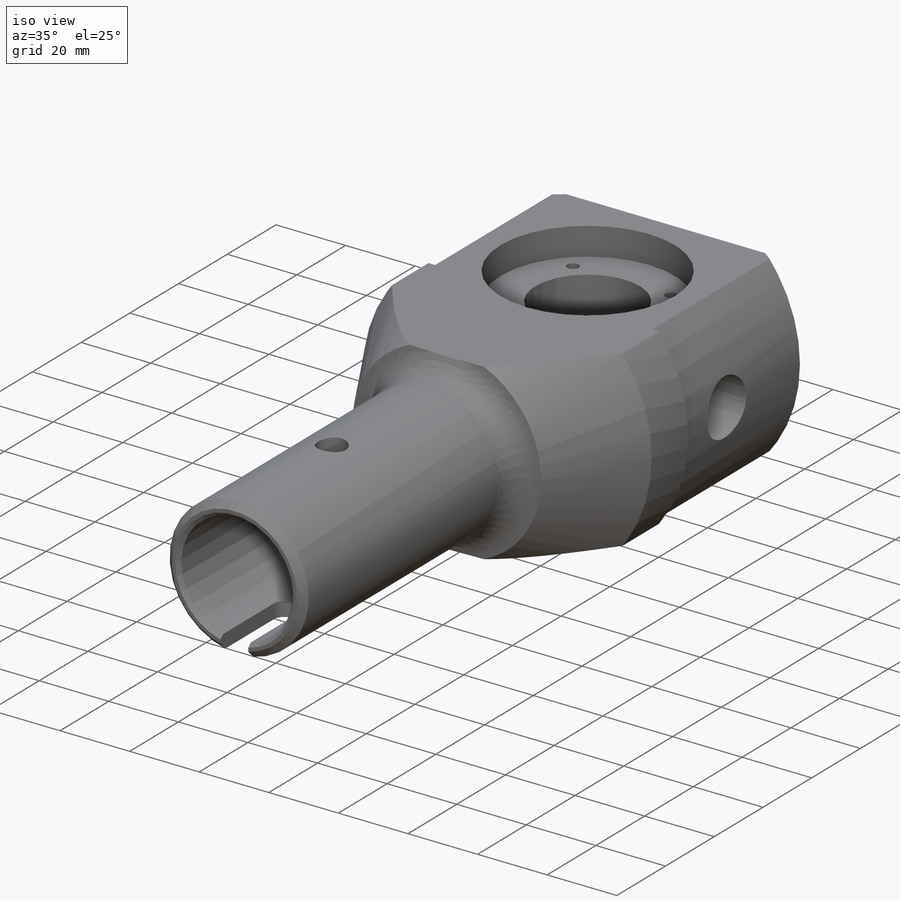
[diagram: iso view]
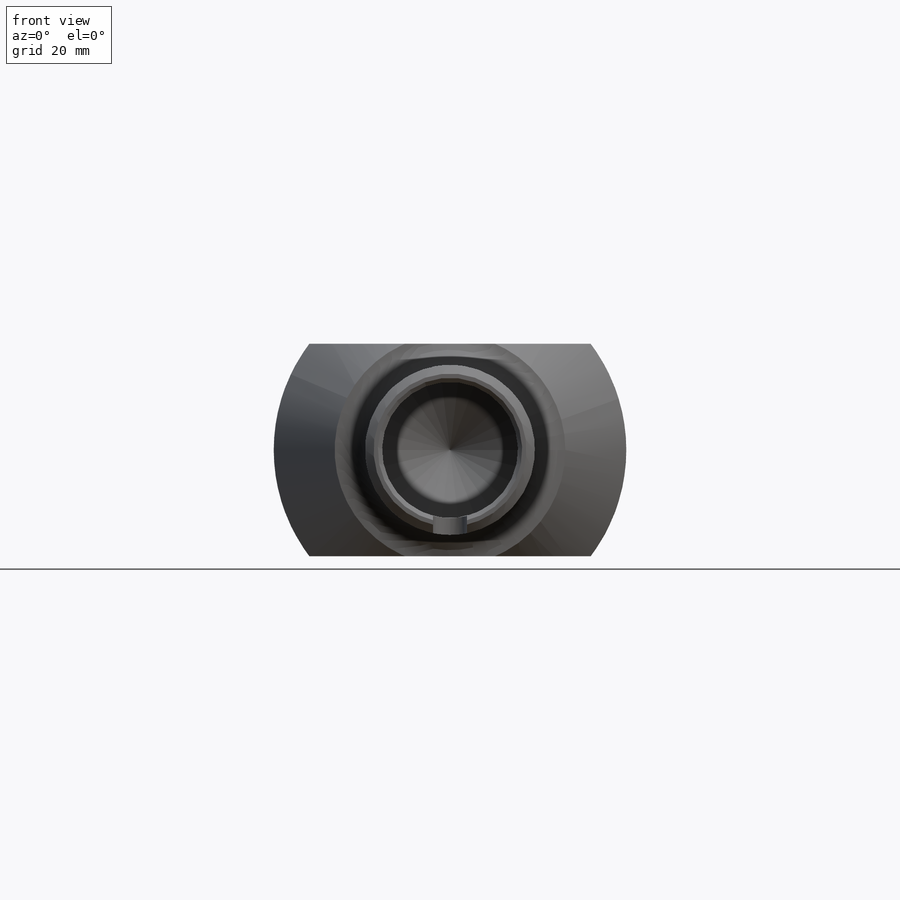
[diagram: front view]
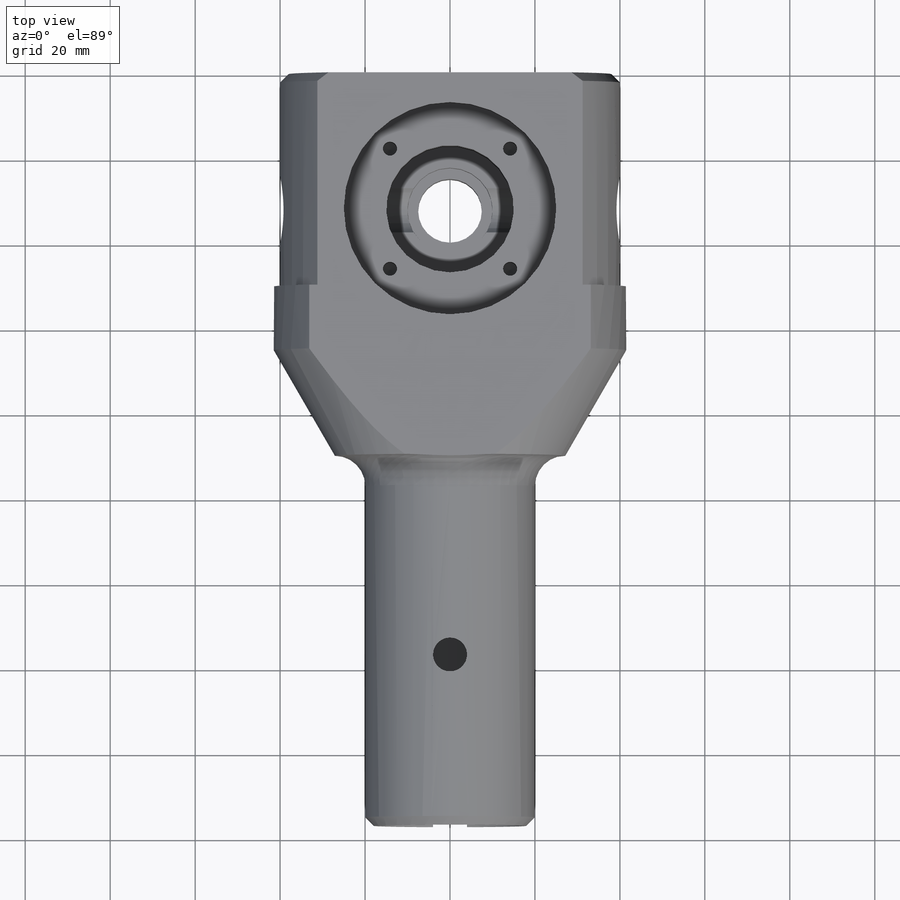
[diagram: top view]
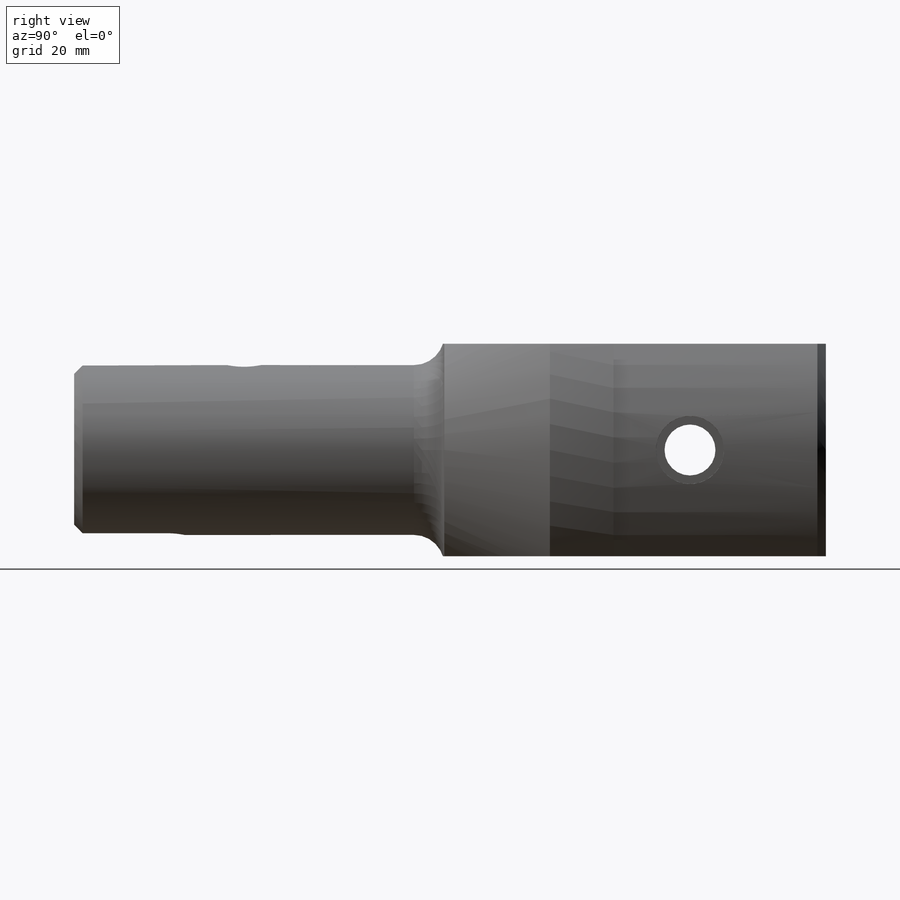
[diagram: right view]
SOLIDWORKS PART (.sldprt)
format: sldprt  version: not decoded by parser v0  size: 505,856 bytes
history: native  units: mm
features: sketch x15, cut_extrude x10, plane x5, material x1, revolve x1, hole x1, thread x1, pattern_circular x1 (+8 scaffold rows collapsed)
feature tree (43):
  scaffold x8  (default folders/planes/origin — collapsed)
  material  "3.0505 (EN-AW 3105)"
  plane  "Ebene vorne"
  plane  "Ebene oben"
  plane  "Ebene rechts"
  sketch  "Skizze1"  dims[c1.D1=80.0mm c1.D2=83.0mm c1.D3=40.0mm c1.D4=50.0mm c1.D5=15.0mm c1.D6=25.0mm c1.D7=15.0mm c2.D7=~162.860369deg c3.D7=~7.709937mm c4.D7=150.0deg c4.D8=80.0mm c4.D9=2.0mm c4.D10=78.0mm c5.D10=135.0deg c5.D8=80.0mm c5.D11=~177.066243mm c5.D6=177.0mm c6.D11=~37.778549mm c7.D11=90.0deg c8.D11=2.0mm c8.D12=2.0mm c8.D10=2.0mm c8.D13=32.0mm c8.D14=1.0mm c8.D15=~90.62856mm c9.D15=~192.301011deg c10.D15=~90.62856mm c11.D15=270.0deg c12.D15=1.0mm c12.D16=~18.290638mm c13.D16=59.0deg c13.D17=90.0mm]
  revolve  "Rotation1"  Angle=360deg
  sketch  "Skizze2"  dims[D3=84.0mm D1=50.0mm D2=83.0mm]
  cut_extrude  "Schnitt-Linear austragen1"  [1 undecoded]
  sketch  "Skizze3"  dims[D1=12.0mm D2=18.0mm]
  cut_extrude  "Schnitt-Linear austragen2"  [1 undecoded]
  sketch  "Skizze4"  dims[D2=50.0mm D1=32.0mm]
  cut_extrude  "Schnitt-Linear austragen3"  Depth=8mm
  sketch  "Skizze5"  dims[D2=30.0mm D1=32.0mm]
  cut_extrude  "Schnitt-Linear austragen4"  Depth=20mm
  sketch  "Skizze6"  dims[c1.D1=40.0mm c1.D2=48.0mm c2.D2=45.0deg]
  hole  "M4 Gewindebohrung1"  Diameter=3.3mm Depth=11.5mm
  sketch  "Skizze8"
  sketch  "Skizze7"  dims[hole-wizard template sketch: 46 standard entries collapsed; hole parameters kept: c15.Bohrerdurchmesser=3.3mm c15.Bohrungstiefe=11.5mm c15.D3=~14.816244mm c15.Spitzenwinkel=118.0deg]
  thread  "Bohrungsgewinde2"  Diameter=8mm  [1 undecoded]
  pattern_circular  "Kreismuster1"  Count=4 Angle=360deg
  sketch  "Skizze9"  dims[D1=20.0mm]
  cut_extrude  "Schnitt-Linear austragen5"  Depth=7.5mm
  sketch  "Skizze10"  dims[D1=15.0mm]
  cut_extrude  "Schnitt-Linear austragen6"  [1 undecoded]
  sketch  "Skizze12"  dims[D1=8.0mm D2=22.0mm]
  cut_extrude  "Schnitt-Linear austragen7"  [1 undecoded]
  sketch  "Skizze13"  dims[D1=8.0mm D2=40.0mm]
  cut_extrude  "Schnitt-Linear austragen8"  [1 undecoded]
  plane  "Ebene1"
  sketch  "Skizze14"  dims[D1=16.0mm]
  cut_extrude  "Schnitt-Linear austragen9"  Depth=24mm
  plane  "Ebene2"
  sketch  "Skizze15"  dims[D1=16.0mm]
  cut_extrude  "Schnitt-Linear austragen10"  Depth=24mm
  sketch  "Skizze16"  dims[c1.D1=~40.41508mm c2.D1=70.0deg c2.D2=~27.317601mm c3.D2=35.0deg c3.D3=50.0mm c3.D4=50.0mm]
decode coverage: 23 of 29 modeling features carry decoded parameters
note: ~ marks probable driven/reference dimensions
note: 6 parameter values undecoded
summary: no parameter record found for 5 features
note: suppression state not decoded; provenance and decode notes live in map.json
